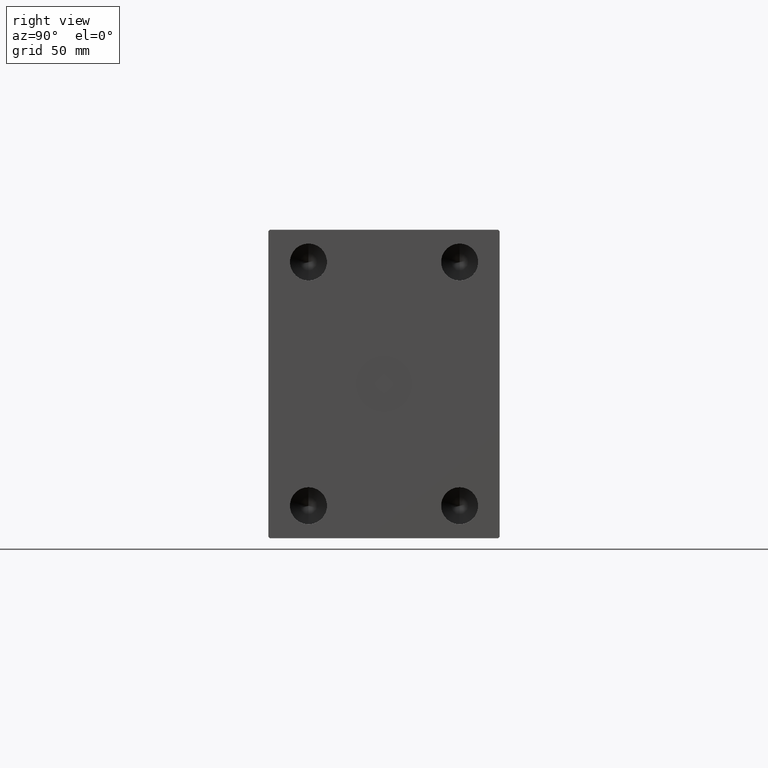
[diagram: clean part render]
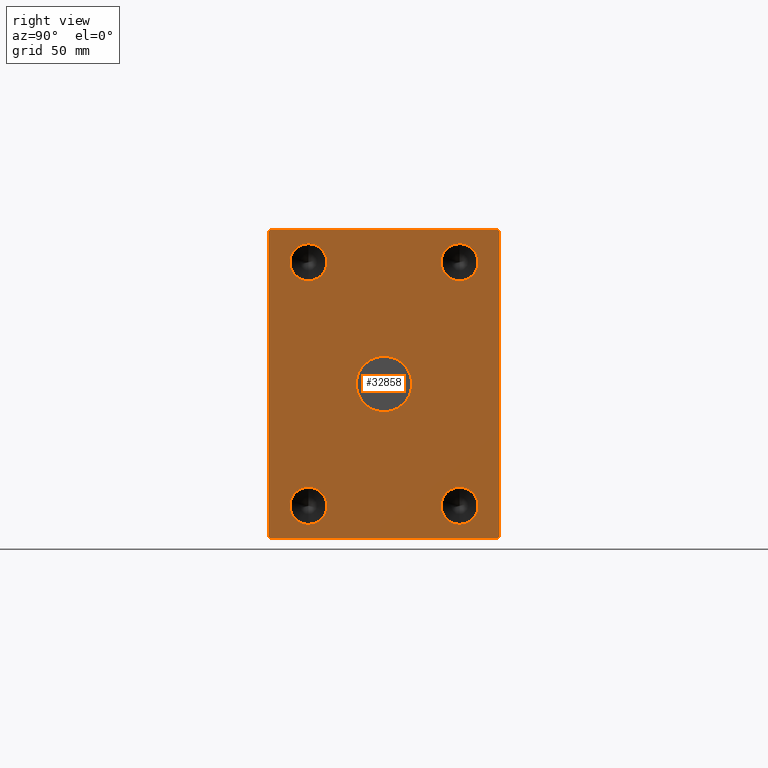
[diagram: same view with one face highlighted and labeled with its STEP entity id]
A machine part, right view. The second image highlights one B-rep face of the part: STEP entity #32858.
In plain terms, the highlighted planar face has unit normal (1, 0, 0).
Its self-contained STEP definition (entity closure, byte-faithful):
#31 = VERTEX_POINT ( 'NONE', #40630 ) ;
#44 = ORIENTED_EDGE ( 'NONE', *, *, #20126, .F. ) ;
#846 = ORIENTED_EDGE ( 'NONE', *, *, #42809, .T. ) ;
#912 = ORIENTED_EDGE ( 'NONE', *, *, #6482, .T. ) ;
#973 = EDGE_LOOP ( 'NONE', ( #14228, #42942 ) ) ;
#1125 = VERTEX_POINT ( 'NONE', #27221 ) ;
#1138 = EDGE_CURVE ( 'NONE', #10947, #23737, #28101, .T. ) ;
#1329 = DIRECTION ( 'NONE',  ( 0.000000000000000000, 0.000000000000000000, -1.000000000000000000 ) ) ;
#1362 = CIRCLE ( 'NONE', #7057, 11.99999999999999645 ) ;
#1391 = EDGE_CURVE ( 'NONE', #34097, #10890, #9812, .T. ) ;
#1535 = FACE_BOUND ( 'NONE', #37759, .T. ) ;
#1583 = CARTESIAN_POINT ( 'NONE',  ( 388.0000000000000000, -49.00000000000000000, -79.00000000000000000 ) ) ;
#1882 = DIRECTION ( 'NONE',  ( 0.000000000000000000, 0.000000000000000000, -1.000000000000000000 ) ) ;
#1929 = VECTOR ( 'NONE', #40279, 1000.000000000000000 ) ;
#2162 = VERTEX_POINT ( 'NONE', #26959 ) ;
#2189 = CARTESIAN_POINT ( 'NONE',  ( 388.0000000000000000, 0.000000000000000000, 0.000000000000000000 ) ) ;
#2403 = CARTESIAN_POINT ( 'NONE',  ( 388.0000000000000000, -74.99999999999997158, -99.00000000000005684 ) ) ;
#2596 = VECTOR ( 'NONE', #14307, 1000.000000000000114 ) ;
#2969 = CIRCLE ( 'NONE', #27141, 11.99999999999999645 ) ;
#3115 = CARTESIAN_POINT ( 'NONE',  ( 388.0000000000000000, -49.00000000000000000, -79.00000000000000000 ) ) ;
#3267 = CARTESIAN_POINT ( 'NONE',  ( 388.0000000000000000, -75.00000000000000000, 98.99999999999994316 ) ) ;
#3761 = DIRECTION ( 'NONE',  ( 0.000000000000000000, 0.000000000000000000, -1.000000000000000000 ) ) ;
#4204 = ORIENTED_EDGE ( 'NONE', *, *, #27679, .T. ) ;
#4541 = CARTESIAN_POINT ( 'NONE',  ( 388.0000000000000000, 75.00000000000001421, -99.00000000000004263 ) ) ;
#4758 = LINE ( 'NONE', #24130, #12015 ) ;
#5107 = FACE_BOUND ( 'NONE', #973, .T. ) ;
#5888 = VERTEX_POINT ( 'NONE', #31849 ) ;
#6482 = EDGE_CURVE ( 'NONE', #2162, #10947, #4758, .T. ) ;
#6693 = CARTESIAN_POINT ( 'NONE',  ( 388.0000000000000000, -75.00000000000000000, 98.99999999999994316 ) ) ;
#6983 = EDGE_CURVE ( 'NONE', #1125, #31, #1362, .T. ) ;
#7057 = AXIS2_PLACEMENT_3D ( 'NONE', #3115, #30257, #26933 ) ;
#7439 = DIRECTION ( 'NONE',  ( 0.000000000000000000, 1.000000000000000000, 0.000000000000000000 ) ) ;
#7535 = EDGE_CURVE ( 'NONE', #23737, #15645, #31194, .T. ) ;
#7868 = DIRECTION ( 'NONE',  ( 1.000000000000000000, 0.000000000000000000, 0.000000000000000000 ) ) ;
#8584 = LINE ( 'NONE', #22161, #41006 ) ;
#8835 = CARTESIAN_POINT ( 'NONE',  ( 388.0000000000000000, 74.00000000000000000, 99.99999999999995737 ) ) ;
#9367 = CARTESIAN_POINT ( 'NONE',  ( 388.0000000000000000, 74.00000000000000000, 99.99999999999995737 ) ) ;
#9812 = LINE ( 'NONE', #9367, #1929 ) ;
#9833 = CARTESIAN_POINT ( 'NONE',  ( 388.0000000000000000, 49.00000000000000000, 67.00000000000001421 ) ) ;
#10069 = EDGE_CURVE ( 'NONE', #5888, #37887, #27049, .T. ) ;
#10734 = DIRECTION ( 'NONE',  ( 0.000000000000000000, 0.000000000000000000, -1.000000000000000000 ) ) ;
#10890 = VERTEX_POINT ( 'NONE', #37757 ) ;
#10947 = VERTEX_POINT ( 'NONE', #12375 ) ;
#11878 = EDGE_LOOP ( 'NONE', ( #22861, #36421 ) ) ;
#12015 = VECTOR ( 'NONE', #7439, 1000.000000000000000 ) ;
#12297 = DIRECTION ( 'NONE',  ( 0.000000000000000000, 0.000000000000000000, -1.000000000000000000 ) ) ;
#12358 = CARTESIAN_POINT ( 'NONE',  ( 388.0000000000000000, -74.99999999999997158, -99.00000000000005684 ) ) ;
#12375 = CARTESIAN_POINT ( 'NONE',  ( 388.0000000000000000, 74.00000000000001421, -100.0000000000000426 ) ) ;
#12519 = DIRECTION ( 'NONE',  ( 1.000000000000000000, 0.000000000000000000, 0.000000000000000000 ) ) ;
#12525 = DIRECTION ( 'NONE',  ( 1.000000000000000000, -0.000000000000000000, -0.000000000000000000 ) ) ;
#13003 = AXIS2_PLACEMENT_3D ( 'NONE', #42754, #12519, #12297 ) ;
#13355 = EDGE_CURVE ( 'NONE', #13851, #13786, #2969, .T. ) ;
#13699 = LINE ( 'NONE', #30382, #20961 ) ;
#13758 = AXIS2_PLACEMENT_3D ( 'NONE', #26540, #12525, #40085 ) ;
#13786 = VERTEX_POINT ( 'NONE', #24069 ) ;
#13851 = VERTEX_POINT ( 'NONE', #9833 ) ;
#14228 = ORIENTED_EDGE ( 'NONE', *, *, #10069, .F. ) ;
#14231 = CIRCLE ( 'NONE', #37683, 11.99999999999999645 ) ;
#14307 = DIRECTION ( 'NONE',  ( 0.000000000000000000, 0.7071067811865474617, 0.7071067811865474617 ) ) ;
#14628 = EDGE_CURVE ( 'NONE', #37887, #5888, #23007, .T. ) ;
#14913 = CARTESIAN_POINT ( 'NONE',  ( 388.0000000000000000, 49.00000000000000000, -78.99999999999998579 ) ) ;
#15570 = FACE_BOUND ( 'NONE', #41906, .T. ) ;
#15645 = VERTEX_POINT ( 'NONE', #17748 ) ;
#15958 = VECTOR ( 'NONE', #17415, 1000.000000000000000 ) ;
#16143 = DIRECTION ( 'NONE',  ( 0.000000000000000000, 0.000000000000000000, -1.000000000000000000 ) ) ;
#17120 = EDGE_CURVE ( 'NONE', #38659, #33530, #14231, .T. ) ;
#17415 = DIRECTION ( 'NONE',  ( 0.000000000000000000, -7.008983741320432232E-17, 1.000000000000000000 ) ) ;
#17748 = CARTESIAN_POINT ( 'NONE',  ( 388.0000000000000000, 75.00000000000000000, 98.99999999999995737 ) ) ;
#17812 = AXIS2_PLACEMENT_3D ( 'NONE', #20314, #40767, #10734 ) ;
#18291 = AXIS2_PLACEMENT_3D ( 'NONE', #34469, #44025, #3761 ) ;
#19385 = DIRECTION ( 'NONE',  ( 0.000000000000000000, 1.401796748264086446E-16, -1.000000000000000000 ) ) ;
#19961 = ORIENTED_EDGE ( 'NONE', *, *, #33006, .T. ) ;
#20126 = EDGE_CURVE ( 'NONE', #31, #1125, #30653, .T. ) ;
#20197 = VECTOR ( 'NONE', #19385, 1000.000000000000000 ) ;
#20314 = CARTESIAN_POINT ( 'NONE',  ( 388.0000000000000000, -49.00000000000000000, 79.00000000000001421 ) ) ;
#20961 = VECTOR ( 'NONE', #22674, 1000.000000000000114 ) ;
#21062 = ORIENTED_EDGE ( 'NONE', *, *, #43279, .F. ) ;
#21576 = FACE_OUTER_BOUND ( 'NONE', #41684, .T. ) ;
#21668 = CARTESIAN_POINT ( 'NONE',  ( 388.0000000000000000, 0.000000000000000000, 0.000000000000000000 ) ) ;
#21986 = CARTESIAN_POINT ( 'NONE',  ( 388.0000000000000000, 0.000000000000000000, -18.00000000000000000 ) ) ;
#22081 = CARTESIAN_POINT ( 'NONE',  ( 388.0000000000000000, 49.00000000000000000, -66.99999999999998579 ) ) ;
#22161 = CARTESIAN_POINT ( 'NONE',  ( 388.0000000000000000, -74.00000000000000000, 99.99999999999994316 ) ) ;
#22496 = DIRECTION ( 'NONE',  ( 1.000000000000000000, -0.000000000000000000, -0.000000000000000000 ) ) ;
#22592 = EDGE_CURVE ( 'NONE', #43049, #30607, #33609, .T. ) ;
#22674 = DIRECTION ( 'NONE',  ( 0.000000000000000000, -0.7071067811865474617, 0.7071067811865474617 ) ) ;
#22861 = ORIENTED_EDGE ( 'NONE', *, *, #17120, .F. ) ;
#23007 = CIRCLE ( 'NONE', #13758, 11.99999999999999645 ) ;
#23737 = VERTEX_POINT ( 'NONE', #4541 ) ;
#24069 = CARTESIAN_POINT ( 'NONE',  ( 388.0000000000000000, 49.00000000000000000, 91.00000000000001421 ) ) ;
#24130 = CARTESIAN_POINT ( 'NONE',  ( 388.0000000000000000, -73.99999999999998579, -100.0000000000000426 ) ) ;
#24491 = AXIS2_PLACEMENT_3D ( 'NONE', #29920, #30144, #16143 ) ;
#24946 = CARTESIAN_POINT ( 'NONE',  ( 388.0000000000000000, 2.204364238465235428E-15, 18.00000000000000000 ) ) ;
#25001 = DIRECTION ( 'NONE',  ( 0.000000000000000000, 0.000000000000000000, -1.000000000000000000 ) ) ;
#25139 = DIRECTION ( 'NONE',  ( 1.000000000000000000, -0.000000000000000000, -0.000000000000000000 ) ) ;
#25576 = DIRECTION ( 'NONE',  ( 0.000000000000000000, 0.000000000000000000, -1.000000000000000000 ) ) ;
#26540 = CARTESIAN_POINT ( 'NONE',  ( 388.0000000000000000, -49.00000000000000000, 79.00000000000001421 ) ) ;
#26933 = DIRECTION ( 'NONE',  ( 0.000000000000000000, 0.000000000000000000, -1.000000000000000000 ) ) ;
#26959 = CARTESIAN_POINT ( 'NONE',  ( 388.0000000000000000, -73.99999999999998579, -100.0000000000000426 ) ) ;
#27049 = CIRCLE ( 'NONE', #17812, 11.99999999999999645 ) ;
#27141 = AXIS2_PLACEMENT_3D ( 'NONE', #32384, #38820, #1882 ) ;
#27221 = CARTESIAN_POINT ( 'NONE',  ( 388.0000000000000000, -49.00000000000000000, -91.00000000000000000 ) ) ;
#27300 = ORIENTED_EDGE ( 'NONE', *, *, #6983, .F. ) ;
#27679 = EDGE_CURVE ( 'NONE', #36756, #28031, #29839, .T. ) ;
#28031 = VERTEX_POINT ( 'NONE', #2403 ) ;
#28101 = LINE ( 'NONE', #41650, #2596 ) ;
#28190 = ORIENTED_EDGE ( 'NONE', *, *, #13355, .F. ) ;
#28526 = DIRECTION ( 'NONE',  ( 0.000000000000000000, 0.000000000000000000, -1.000000000000000000 ) ) ;
#28915 = FACE_BOUND ( 'NONE', #11878, .T. ) ;
#29476 = VECTOR ( 'NONE', #42381, 1000.000000000000114 ) ;
#29687 = CARTESIAN_POINT ( 'NONE',  ( 388.0000000000000000, -49.00000000000000000, 91.00000000000001421 ) ) ;
#29839 = LINE ( 'NONE', #6693, #20197 ) ;
#29920 = CARTESIAN_POINT ( 'NONE',  ( 388.0000000000000000, 49.00000000000000000, -78.99999999999998579 ) ) ;
#30144 = DIRECTION ( 'NONE',  ( 1.000000000000000000, -0.000000000000000000, -0.000000000000000000 ) ) ;
#30257 = DIRECTION ( 'NONE',  ( 1.000000000000000000, -0.000000000000000000, -0.000000000000000000 ) ) ;
#30382 = CARTESIAN_POINT ( 'NONE',  ( 388.0000000000000000, 75.00000000000000000, 98.99999999999995737 ) ) ;
#30607 = VERTEX_POINT ( 'NONE', #21986 ) ;
#30653 = CIRCLE ( 'NONE', #42018, 11.99999999999999645 ) ;
#30866 = CIRCLE ( 'NONE', #24491, 11.99999999999999645 ) ;
#30897 = AXIS2_PLACEMENT_3D ( 'NONE', #2189, #42901, #25576 ) ;
#31194 = LINE ( 'NONE', #41192, #15958 ) ;
#31383 = EDGE_CURVE ( 'NONE', #28031, #2162, #35721, .T. ) ;
#31549 = EDGE_CURVE ( 'NONE', #33530, #38659, #30866, .T. ) ;
#31701 = EDGE_CURVE ( 'NONE', #30607, #43049, #42956, .T. ) ;
#31849 = CARTESIAN_POINT ( 'NONE',  ( 388.0000000000000000, -49.00000000000000000, 67.00000000000001421 ) ) ;
#32384 = CARTESIAN_POINT ( 'NONE',  ( 388.0000000000000000, 49.00000000000000000, 79.00000000000001421 ) ) ;
#32402 = DIRECTION ( 'NONE',  ( 0.000000000000000000, -0.7071067811865474617, -0.7071067811865474617 ) ) ;
#32431 = EDGE_LOOP ( 'NONE', ( #42608, #37370 ) ) ;
#32477 = PLANE ( 'NONE',  #30897 ) ;
#32858 = ADVANCED_FACE ( 'NONE', ( #38043, #1535, #15570, #28915, #5107, #21576 ), #32477, .T. ) ;
#33006 = EDGE_CURVE ( 'NONE', #15645, #34097, #13699, .T. ) ;
#33530 = VERTEX_POINT ( 'NONE', #22081 ) ;
#33609 = CIRCLE ( 'NONE', #13003, 18.00000000000000000 ) ;
#33965 = ORIENTED_EDGE ( 'NONE', *, *, #7535, .T. ) ;
#34097 = VERTEX_POINT ( 'NONE', #8835 ) ;
#34469 = CARTESIAN_POINT ( 'NONE',  ( 388.0000000000000000, 49.00000000000000000, 79.00000000000001421 ) ) ;
#35280 = ORIENTED_EDGE ( 'NONE', *, *, #1138, .T. ) ;
#35721 = LINE ( 'NONE', #12358, #29476 ) ;
#36421 = ORIENTED_EDGE ( 'NONE', *, *, #31549, .F. ) ;
#36555 = AXIS2_PLACEMENT_3D ( 'NONE', #21668, #7868, #25001 ) ;
#36756 = VERTEX_POINT ( 'NONE', #3267 ) ;
#37333 = CARTESIAN_POINT ( 'NONE',  ( 388.0000000000000000, 49.00000000000000000, -90.99999999999998579 ) ) ;
#37370 = ORIENTED_EDGE ( 'NONE', *, *, #22592, .F. ) ;
#37463 = CIRCLE ( 'NONE', #18291, 11.99999999999999645 ) ;
#37683 = AXIS2_PLACEMENT_3D ( 'NONE', #14913, #25139, #1329 ) ;
#37757 = CARTESIAN_POINT ( 'NONE',  ( 388.0000000000000000, -74.00000000000000000, 99.99999999999994316 ) ) ;
#37759 = EDGE_LOOP ( 'NONE', ( #28190, #21062 ) ) ;
#37887 = VERTEX_POINT ( 'NONE', #29687 ) ;
#38043 = FACE_BOUND ( 'NONE', #32431, .T. ) ;
#38659 = VERTEX_POINT ( 'NONE', #37333 ) ;
#38820 = DIRECTION ( 'NONE',  ( 1.000000000000000000, -0.000000000000000000, -0.000000000000000000 ) ) ;
#39052 = ORIENTED_EDGE ( 'NONE', *, *, #1391, .T. ) ;
#40085 = DIRECTION ( 'NONE',  ( 0.000000000000000000, 0.000000000000000000, -1.000000000000000000 ) ) ;
#40279 = DIRECTION ( 'NONE',  ( 0.000000000000000000, -1.000000000000000000, -9.376883653928687363E-17 ) ) ;
#40630 = CARTESIAN_POINT ( 'NONE',  ( 388.0000000000000000, -49.00000000000000000, -67.00000000000000000 ) ) ;
#40767 = DIRECTION ( 'NONE',  ( 1.000000000000000000, -0.000000000000000000, -0.000000000000000000 ) ) ;
#41006 = VECTOR ( 'NONE', #32402, 1000.000000000000114 ) ;
#41192 = CARTESIAN_POINT ( 'NONE',  ( 388.0000000000000000, 75.00000000000001421, -99.00000000000004263 ) ) ;
#41650 = CARTESIAN_POINT ( 'NONE',  ( 388.0000000000000000, 74.00000000000001421, -100.0000000000000426 ) ) ;
#41684 = EDGE_LOOP ( 'NONE', ( #19961, #39052, #846, #4204, #43483, #912, #35280, #33965 ) ) ;
#41906 = EDGE_LOOP ( 'NONE', ( #27300, #44 ) ) ;
#42018 = AXIS2_PLACEMENT_3D ( 'NONE', #1583, #22496, #28526 ) ;
#42381 = DIRECTION ( 'NONE',  ( 0.000000000000000000, 0.7071067811865474617, -0.7071067811865474617 ) ) ;
#42608 = ORIENTED_EDGE ( 'NONE', *, *, #31701, .F. ) ;
#42754 = CARTESIAN_POINT ( 'NONE',  ( 388.0000000000000000, 0.000000000000000000, 0.000000000000000000 ) ) ;
#42809 = EDGE_CURVE ( 'NONE', #10890, #36756, #8584, .T. ) ;
#42901 = DIRECTION ( 'NONE',  ( 1.000000000000000000, 0.000000000000000000, 0.000000000000000000 ) ) ;
#42942 = ORIENTED_EDGE ( 'NONE', *, *, #14628, .F. ) ;
#42956 = CIRCLE ( 'NONE', #36555, 18.00000000000000000 ) ;
#43049 = VERTEX_POINT ( 'NONE', #24946 ) ;
#43279 = EDGE_CURVE ( 'NONE', #13786, #13851, #37463, .T. ) ;
#43483 = ORIENTED_EDGE ( 'NONE', *, *, #31383, .T. ) ;
#44025 = DIRECTION ( 'NONE',  ( 1.000000000000000000, -0.000000000000000000, -0.000000000000000000 ) ) ;